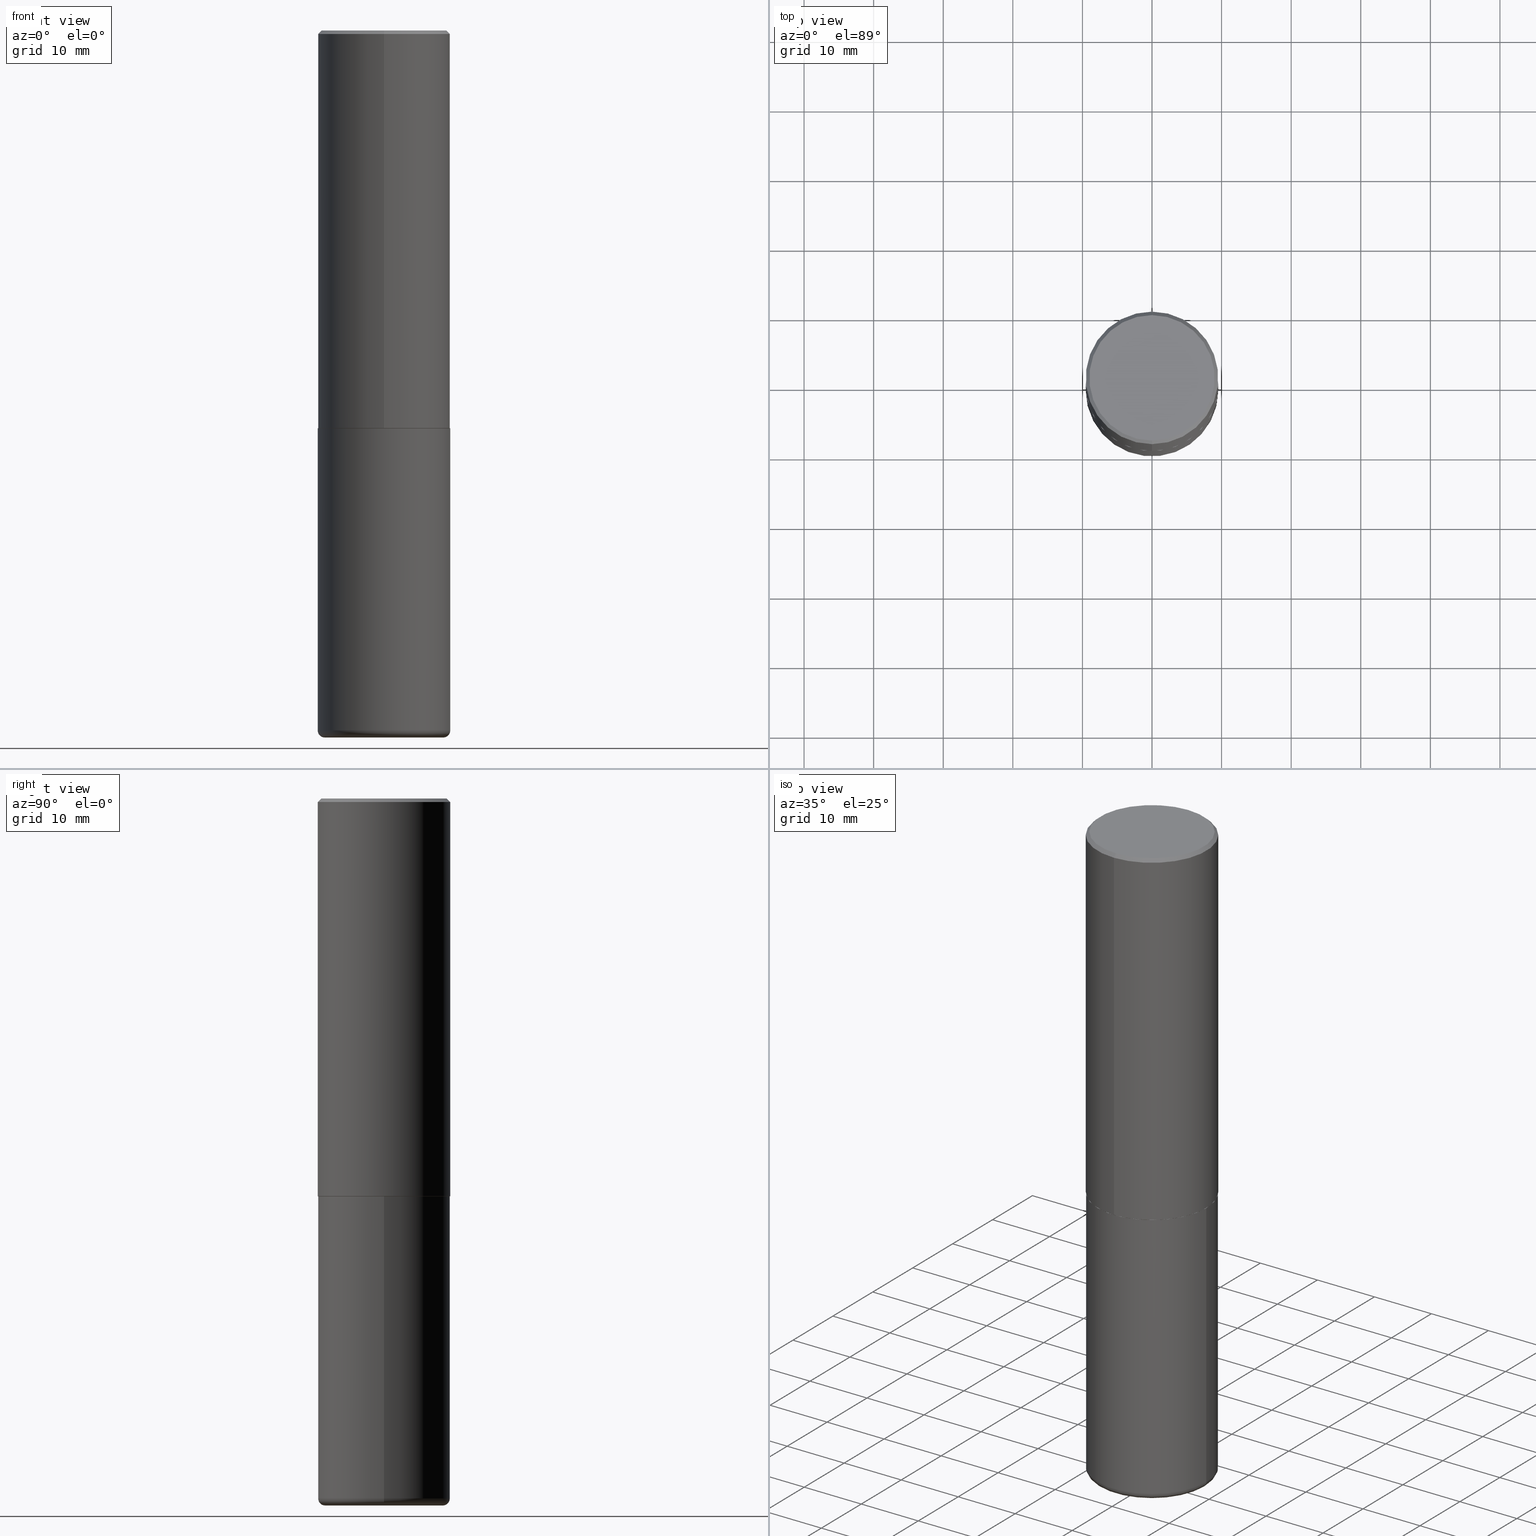
[diagram: canonical four-view strip — front | top / right | iso, engineering-drawing reading convention]
A machine part, canonical four-view strip (front | top / right | iso — engineering-drawing reading convention). The complete STEP part file that produces these views, byte-faithful:
ISO-10303-21;
HEADER;
FILE_DESCRIPTION (( 'STEP AP203' ),
    '1' );
FILE_NAME ('33353.STEP',
    '2024-03-01T13:24:22',
    ( '' ),
    ( '' ),
    'SwSTEP 2.0',
    'SolidWorks 2023',
    '' );
FILE_SCHEMA (( 'CONFIG_CONTROL_DESIGN' ));
ENDSEC;

DATA;
#1 = EDGE_CURVE ( 'NONE', #32, #392, #309, .T. ) ;
#2 = CLOSED_SHELL ( 'NONE', ( #136, #146, #199, #396, #107, #31 ) ) ;
#3 = AXIS2_PLACEMENT_3D ( 'NONE', #246, #213, #281 ) ;
#4 = CARTESIAN_POINT ( 'NONE',  ( 9.684056472493141327E-29, -1.382626610181885731E-14, -3.960000000000000409 ) ) ;
#5 = APPROVAL_STATUS ( 'not_yet_approved' ) ;
#6 = CARTESIAN_POINT ( 'NONE',  ( -2.504081769186608216E-15, -0.3549999999999999822, 1.300162411011219070E-15 ) ) ;
#7 = DIRECTION ( 'NONE',  ( -1.000000000000000000, 6.982962677686265922E-15, -4.876176775795935793E-29 ) ) ;
#8 = AXIS2_PLACEMENT_3D ( 'NONE', #357, #385, #226 ) ;
#9 = ORIENTED_EDGE ( 'NONE', *, *, #373, .T. ) ;
#10 = ORIENTED_EDGE ( 'NONE', *, *, #1, .T. ) ;
#11 = APPLICATION_CONTEXT ( 'configuration controlled 3d designs of mechanical parts and assemblies' ) ;
#12 = PLANE ( 'NONE',  #169 ) ;
#13 = PERSON_AND_ORGANIZATION ( #273, #101 ) ;
#14 = DIRECTION ( 'NONE',  ( 1.000000000000000000, -6.982962677686265922E-15, 0.000000000000000000 ) ) ;
#15 = VECTOR ( 'NONE', #237, 39.37007874015748143 ) ;
#16 = COORDINATED_UNIVERSAL_TIME_OFFSET ( 5, 0, .BEHIND. ) ;
#17 = DIRECTION ( 'NONE',  ( 6.982962677686265922E-15, 1.000000000000000000, -3.492787480900183539E-15 ) ) ;
#18 = UNCERTAINTY_MEASURE_WITH_UNIT (LENGTH_MEASURE( 1.000000000000000082E-05 ), #105, 'distance_accuracy_value', 'NONE');
#19 = PERSON_AND_ORGANIZATION ( #273, #101 ) ;
#20 = DIRECTION ( 'NONE',  ( -6.982962677686265922E-15, -1.000000000000000000, 3.492787480900183539E-15 ) ) ;
#21 = COORDINATED_UNIVERSAL_TIME_OFFSET ( 5, 0, .BEHIND. ) ;
#22 = CARTESIAN_POINT ( 'NONE',  ( 5.500252647138444905E-29, -7.858771832025412372E-15, -2.249999999999999556 ) ) ;
#23 = AXIS2_PLACEMENT_3D ( 'NONE', #103, #267, #81 ) ;
#24 = AXIS2_PLACEMENT_3D ( 'NONE', #27, #52, #313 ) ;
#25 = COORDINATED_UNIVERSAL_TIME_OFFSET ( 5, 0, .BEHIND. ) ;
#26 = CARTESIAN_POINT ( 'NONE',  ( 5.500252647138444905E-29, -7.858771832025412372E-15, -2.249999999999999556 ) ) ;
#27 = CARTESIAN_POINT ( 'NONE',  ( 5.497808090406382563E-29, -7.855279044544511212E-15, -2.248999999999999666 ) ) ;
#28 = FACE_OUTER_BOUND ( 'NONE', #29, .T. ) ;
#29 = EDGE_LOOP ( 'NONE', ( #379, #248, #257, #375 ) ) ;
#30 = AXIS2_PLACEMENT_3D ( 'NONE', #413, #184, #155 ) ;
#31 = ADVANCED_FACE ( 'NONE', ( #132 ), #262, .T. ) ;
#32 = VERTEX_POINT ( 'NONE', #393 ) ;
#33 = VERTEX_POINT ( 'NONE', #258 ) ;
#34 = VERTEX_POINT ( 'NONE', #6 ) ;
#35 = ORIENTED_EDGE ( 'NONE', *, *, #397, .T. ) ;
#36 = DIRECTION ( 'NONE',  ( -2.445468806185136597E-29, 3.491481338843145583E-15, 1.000000000000000000 ) ) ;
#37 = DIRECTION ( 'NONE',  ( 5.024295867788576727E-15, 0.7071067811866224018, 0.7071067811864726327 ) ) ;
#38 = EDGE_LOOP ( 'NONE', ( #384, #58, #316, #378 ) ) ;
#39 = EDGE_CURVE ( 'NONE', #392, #32, #266, .T. ) ;
#40 = PRODUCT ( '33353', '33353', '', ( #368 ) ) ;
#41 = FACE_OUTER_BOUND ( 'NONE', #159, .T. ) ;
#42 = DIRECTION ( 'NONE',  ( 1.000000000000000000, -6.982962677686266711E-15, 4.876176775795935793E-29 ) ) ;
#43 = CARTESIAN_POINT ( 'NONE',  ( 0.000000000000000000, 0.000000000000000000, 0.000000000000000000 ) ) ;
#44 = DIRECTION ( 'NONE',  ( -6.982962677686265922E-15, -1.000000000000000000, 3.492787480900183539E-15 ) ) ;
#45 = TOROIDAL_SURFACE ( 'NONE', #206, 0.3350000000000000200, 0.04000000000000001471 ) ;
#46 = CALENDAR_DATE ( 2024, 1, 3 ) ;
#47 = FACE_OUTER_BOUND ( 'NONE', #192, .T. ) ;
#48 = PERSON_AND_ORGANIZATION_ROLE ( 'classification_officer' ) ;
#49 = CARTESIAN_POINT ( 'NONE',  ( -2.618611004132297163E-15, -0.3750000000000081601, -2.248999999999998334 ) ) ;
#50 = EDGE_CURVE ( 'NONE', #354, #282, #233, .T. ) ;
#51 = CALENDAR_DATE ( 2024, 1, 3 ) ;
#52 = DIRECTION ( 'NONE',  ( -2.444556732061531349E-29, 3.492787480900183539E-15, 1.000000000000000000 ) ) ;
#53 = CIRCLE ( 'NONE', #30, 0.3750000000000000555 ) ;
#54 = DIRECTION ( 'NONE',  ( -2.445468806185136597E-29, 3.491481338843145583E-15, 1.000000000000000000 ) ) ;
#55 = ORIENTED_EDGE ( 'NONE', *, *, #165, .T. ) ;
#56 = COORDINATED_UNIVERSAL_TIME_OFFSET ( 5, 0, .BEHIND. ) ;
#57 = DIRECTION ( 'NONE',  ( -2.444556732061531349E-29, 3.492787480900183539E-15, 1.000000000000000000 ) ) ;
#58 = ORIENTED_EDGE ( 'NONE', *, *, #69, .T. ) ;
#59 = ORIENTED_EDGE ( 'NONE', *, *, #69, .F. ) ;
#60 = CIRCLE ( 'NONE', #131, 0.3350000000000000200 ) ;
#61 = SECURITY_CLASSIFICATION ( '', '', #78 ) ;
#62 = ORIENTED_EDGE ( 'NONE', *, *, #370, .F. ) ;
#63 = ORIENTED_EDGE ( 'NONE', *, *, #397, .F. ) ;
#64 = LINE ( 'NONE', #358, #200 ) ;
#65 = AXIS2_PLACEMENT_3D ( 'NONE', #279, #84, #150 ) ;
#66 = LOCAL_TIME ( 8, 24, 22.00000000000000000, #404 ) ;
#67 = DIRECTION ( 'NONE',  ( -6.982962677686266711E-15, -1.000000000000000000, 3.492787480900183934E-15 ) ) ;
#68 = DIRECTION ( 'NONE',  ( -2.444556732061531349E-29, 3.492787480900183539E-15, 1.000000000000000000 ) ) ;
#69 = EDGE_CURVE ( 'NONE', #33, #418, #64, .T. ) ;
#70 = DIRECTION ( 'NONE',  ( -2.444556732061531349E-29, 3.492787480900183539E-15, 1.000000000000000000 ) ) ;
#71 = DIRECTION ( 'NONE',  ( -4.851104656540953231E-15, -0.7071067811865484609, -0.7071067811865465735 ) ) ;
#72 = CARTESIAN_POINT ( 'NONE',  ( 2.618611004132350411E-15, 0.3749999999999999445, -0.02000000000000139513 ) ) ;
#73 = DIRECTION ( 'NONE',  ( 1.000000000000000000, 0.000000000000000000, 0.000000000000000000 ) ) ;
#74 = DIRECTION ( 'NONE',  ( -6.982962677686266711E-15, -1.000000000000000000, 3.642463991552348591E-15 ) ) ;
#75 = DIRECTION ( 'NONE',  ( -2.444556732061531069E-29, 3.492787480900183539E-15, 1.000000000000000000 ) ) ;
#76 = AXIS2_PLACEMENT_3D ( 'NONE', #4, #227, #295 ) ;
#77 = AXIS2_PLACEMENT_3D ( 'NONE', #43, #142, #73 ) ;
#78 = SECURITY_CLASSIFICATION_LEVEL ( 'unclassified' ) ;
#79 = LINE ( 'NONE', #72, #361 ) ;
#80 = DATE_AND_TIME ( #304, #66 ) ;
#81 = DIRECTION ( 'NONE',  ( 1.000000000000000000, -6.982962677686265922E-15, 4.883557194083113462E-29 ) ) ;
#82 = EDGE_CURVE ( 'NONE', #88, #33, #359, .T. ) ;
#83 = CALENDAR_DATE ( 2024, 1, 3 ) ;
#84 = DIRECTION ( 'NONE',  ( -2.445468806185136597E-29, 3.491481338843145583E-15, 1.000000000000000000 ) ) ;
#85 = CIRCLE ( 'NONE', #414, 0.3739999999999999991 ) ;
#86 = ORIENTED_EDGE ( 'NONE', *, *, #39, .F. ) ;
#87 = DIRECTION ( 'NONE',  ( -1.000000000000000000, 7.105427357601014480E-15, 0.000000000000000000 ) ) ;
#88 = VERTEX_POINT ( 'NONE', #127 ) ;
#89 = ORIENTED_EDGE ( 'NONE', *, *, #386, .T. ) ;
#90 = EDGE_LOOP ( 'NONE', ( #89, #95 ) ) ;
#91 = EDGE_LOOP ( 'NONE', ( #314, #55 ) ) ;
#92 = ADVANCED_FACE ( 'NONE', ( #328 ), #231, .T. ) ;
#93 = EDGE_CURVE ( 'NONE', #88, #288, #85, .T. ) ;
#94 = EDGE_LOOP ( 'NONE', ( #292, #223, #252, #202 ) ) ;
#95 = ORIENTED_EDGE ( 'NONE', *, *, #50, .T. ) ;
#96 = VECTOR ( 'NONE', #71, 39.37007874015748143 ) ;
#97 = DIRECTION ( 'NONE',  ( -2.445468806185136597E-29, 3.491481338843145583E-15, 1.000000000000000000 ) ) ;
#98 = DIRECTION ( 'NONE',  ( -2.444556732061531349E-29, 3.492787480900183539E-15, 1.000000000000000000 ) ) ;
#99 = CARTESIAN_POINT ( 'NONE',  ( 9.684056472493140206E-29, -1.382626610181885573E-14, -3.959999999999999964 ) ) ;
#100 = AXIS2_PLACEMENT_3D ( 'NONE', #198, #36, #355 ) ;
#101 = ORGANIZATION ( 'UNSPECIFIED', 'UNSPECIFIED', '' ) ;
#102 = CARTESIAN_POINT ( 'NONE',  ( -2.618611004132351200E-15, -0.3750000000000001665, 1.309795305337569517E-15 ) ) ;
#103 = CARTESIAN_POINT ( 'NONE',  ( 9.684056472493140206E-29, -1.382626610181885573E-14, -3.959999999999999964 ) ) ;
#104 = APPROVAL ( #5, 'UNSPECIFIED' ) ;
#105 =( CONVERSION_BASED_UNIT ( 'INCH', #275 ) LENGTH_UNIT ( ) NAMED_UNIT ( #167 ) );
#106 = DIRECTION ( 'NONE',  ( -6.982962677686266711E-15, -1.000000000000000000, 3.652203200085913145E-15 ) ) ;
#107 = ADVANCED_FACE ( 'NONE', ( #259 ), #45, .T. ) ;
#108 = PERSON_AND_ORGANIZATION_ROLE ( 'creator' ) ;
#109 = DIRECTION ( 'NONE',  ( -2.444556732061531349E-29, 3.492787480900183539E-15, 1.000000000000000000 ) ) ;
#110 = AXIS2_PLACEMENT_3D ( 'NONE', #325, #68, #166 ) ;
#111 = EDGE_CURVE ( 'NONE', #34, #308, #394, .T. ) ;
#112 = DIRECTION ( 'NONE',  ( -1.000000000000000000, 6.982962677686265922E-15, -4.876176775795935793E-29 ) ) ;
#113 = MANIFOLD_SOLID_BREP ( 'Body-Move/Copy2[2]', #156 ) ;
#114 = APPROVAL_DATE_TIME ( #80, #158 ) ;
#115 = CARTESIAN_POINT ( 'NONE',  ( 0.000000000000000000, 0.000000000000000000, 0.000000000000000000 ) ) ;
#116 = CYLINDRICAL_SURFACE ( 'NONE', #291, 0.3749999999999999445 ) ;
#117 = CIRCLE ( 'NONE', #356, 0.3750000000000000555 ) ;
#118 = ORIENTED_EDGE ( 'NONE', *, *, #161, .F. ) ;
#119 = CARTESIAN_POINT ( 'NONE',  ( -2.572686749164323547E-15, -0.3750000000000001110, -0.01999999999999877570 ) ) ;
#120 = ORIENTED_EDGE ( 'NONE', *, *, #391, .T. ) ;
#121 = EDGE_CURVE ( 'NONE', #418, #308, #322, .T. ) ;
#122 = ORIENTED_EDGE ( 'NONE', *, *, #50, .F. ) ;
#123 = CC_DESIGN_DATE_AND_TIME_ASSIGNMENT ( #214, #341, ( #61 ) ) ;
#124 = VERTEX_POINT ( 'NONE', #294 ) ;
#125 = AXIS2_PLACEMENT_3D ( 'NONE', #405, #75, #44 ) ;
#126 = DIRECTION ( 'NONE',  ( 2.438088387897960049E-29, -3.491481338843145188E-15, -1.000000000000000000 ) ) ;
#127 = CARTESIAN_POINT ( 'NONE',  ( 2.660982545421630808E-15, 0.3739999999999921720, -2.250000000000001332 ) ) ;
#128 = PRODUCT_DEFINITION_SHAPE ( 'NONE', 'NONE',  #243 ) ;
#129 = DIRECTION ( 'NONE',  ( 1.000000000000000000, -6.982962677686265922E-15, 4.883557194083113462E-29 ) ) ;
#130 = APPROVAL_ROLE ( '' ) ;
#131 = AXIS2_PLACEMENT_3D ( 'NONE', #203, #178, #14 ) ;
#132 = FACE_OUTER_BOUND ( 'NONE', #153, .T. ) ;
#133 = DIRECTION ( 'NONE',  ( -6.982962677686266711E-15, -1.000000000000000000, 3.652203200085913145E-15 ) ) ;
#134 = ORIENTED_EDGE ( 'NONE', *, *, #173, .F. ) ;
#135 = LINE ( 'NONE', #102, #296 ) ;
#136 = ADVANCED_FACE ( 'NONE', ( #260 ), #324, .T. ) ;
#137 = PERSON_AND_ORGANIZATION_ROLE ( 'design_supplier' ) ;
#138 = TOROIDAL_SURFACE ( 'NONE', #23, 0.3350000000000000200, 0.04000000000000001471 ) ;
#139 = CONICAL_SURFACE ( 'NONE', #195, 0.3750000000000000555, 0.7853981633974461696 ) ;
#140 = ADVANCED_FACE ( 'NONE', ( #298 ), #12, .F. ) ;
#141 = DIRECTION ( 'NONE',  ( -4.937700262165053702E-15, -0.7071067811866175168, 0.7071067811864775177 ) ) ;
#142 = DIRECTION ( 'NONE',  ( 0.000000000000000000, 0.000000000000000000, 1.000000000000000000 ) ) ;
#143 = CC_DESIGN_PERSON_AND_ORGANIZATION_ASSIGNMENT ( #372, #409, ( #243 ) ) ;
#144 = APPROVAL_STATUS ( 'not_yet_approved' ) ;
#145 = CARTESIAN_POINT ( 'NONE',  ( 5.500252647138444905E-29, -7.858771832025412372E-15, -2.249999999999999556 ) ) ;
#146 = ADVANCED_FACE ( 'NONE', ( #41 ), #138, .T. ) ;
#147 = AXIS2_PLACEMENT_3D ( 'NONE', #210, #336, #20 ) ;
#148 = DIRECTION ( 'NONE',  ( -6.982962677686266711E-15, -1.000000000000000000, 3.652203200085913145E-15 ) ) ;
#149 = PERSON_AND_ORGANIZATION ( #273, #101 ) ;
#150 = DIRECTION ( 'NONE',  ( 1.000000000000000000, -6.982962677686265922E-15, 0.000000000000000000 ) ) ;
#151 = EDGE_LOOP ( 'NONE', ( #289, #255, #162, #118 ) ) ;
#152 = CARTESIAN_POINT ( 'NONE',  ( -0.3750000000000000555, -8.176514298007592183E-15, -2.249999999999999556 ) ) ;
#153 = EDGE_LOOP ( 'NONE', ( #412, #287 ) ) ;
#154 = APPROVAL_DATE_TIME ( #390, #104 ) ;
#155 = DIRECTION ( 'NONE',  ( 1.000000000000000000, -6.982962677686266711E-15, 0.000000000000000000 ) ) ;
#156 = CLOSED_SHELL ( 'NONE', ( #268, #263, #191, #348, #92, #283, #271, #140 ) ) ;
#157 = ORIENTED_EDGE ( 'NONE', *, *, #386, .F. ) ;
#158 = APPROVAL ( #144, 'UNSPECIFIED' ) ;
#159 = EDGE_LOOP ( 'NONE', ( #347, #9, #349, #272 ) ) ;
#160 = EDGE_LOOP ( 'NONE', ( #63, #168, #220, #122 ) ) ;
#161 = EDGE_CURVE ( 'NONE', #280, #418, #79, .T. ) ;
#162 = ORIENTED_EDGE ( 'NONE', *, *, #327, .T. ) ;
#163 = LOCAL_TIME ( 8, 24, 22.00000000000000000, #21 ) ;
#164 = EDGE_LOOP ( 'NONE', ( #59, #120, #344, #190 ) ) ;
#165 = EDGE_CURVE ( 'NONE', #34, #280, #333, .T. ) ;
#166 = DIRECTION ( 'NONE',  ( -6.982962677686265922E-15, -1.000000000000000000, 3.494488891895536035E-15 ) ) ;
#167 = DIMENSIONAL_EXPONENTS ( 1.000000000000000000, 0.000000000000000000, 0.000000000000000000, 0.000000000000000000, 0.000000000000000000, 0.000000000000000000, 0.000000000000000000 ) ;
#168 = ORIENTED_EDGE ( 'NONE', *, *, #39, .T. ) ;
#169 = AXIS2_PLACEMENT_3D ( 'NONE', #180, #270, #17 ) ;
#170 = VECTOR ( 'NONE', #141, 39.37007874015748143 ) ;
#171 = DIRECTION ( 'NONE',  ( -2.444556732061531349E-29, 3.492787480900183539E-15, 1.000000000000000000 ) ) ;
#172 = DIRECTION ( 'NONE',  ( -2.444556732061531349E-29, 3.492787480900183539E-15, 1.000000000000000000 ) ) ;
#173 = EDGE_CURVE ( 'NONE', #32, #282, #307, .T. ) ;
#174 = DATE_AND_TIME ( #46, #163 ) ;
#175 = CARTESIAN_POINT ( 'NONE',  ( 5.502304813916556222E-29, -7.855833012397076871E-15, -2.249999999999999556 ) ) ;
#176 = CIRCLE ( 'NONE', #3, 0.3549999999999999822 ) ;
#177 = LOCAL_TIME ( 8, 24, 22.00000000000000000, #25 ) ;
#178 = DIRECTION ( 'NONE',  ( -2.445468806185136597E-29, 3.491481338843145583E-15, 1.000000000000000000 ) ) ;
#179 = APPROVAL_STATUS ( 'not_yet_approved' ) ;
#180 = CARTESIAN_POINT ( 'NONE',  ( 2.478951750578624209E-15, 0.3549999999999999822, -1.209828128073737866E-15 ) ) ;
#181 = DIRECTION ( 'NONE',  ( -2.444556732061531349E-29, 3.492787480900183539E-15, 1.000000000000000000 ) ) ;
#182 = PERSON_AND_ORGANIZATION ( #273, #101 ) ;
#183 = AXIS2_PLACEMENT_3D ( 'NONE', #241, #172, #74 ) ;
#184 = DIRECTION ( 'NONE',  ( -2.445468806185136597E-29, 3.491481338843145583E-15, 1.000000000000000000 ) ) ;
#185 =( GEOMETRIC_REPRESENTATION_CONTEXT ( 3 ) GLOBAL_UNCERTAINTY_ASSIGNED_CONTEXT ( ( #18 ) ) GLOBAL_UNIT_ASSIGNED_CONTEXT ( ( #105, #310, #366 ) ) REPRESENTATION_CONTEXT ( 'NONE', 'WORKASPACE' ) );
#186 = CC_DESIGN_PERSON_AND_ORGANIZATION_ASSIGNMENT ( #182, #48, ( #61 ) ) ;
#187 = DIRECTION ( 'NONE',  ( 1.000000000000000000, -6.982962677686266711E-15, 4.876176775795935793E-29 ) ) ;
#188 = LINE ( 'NONE', #416, #362 ) ;
#189 = VERTEX_POINT ( 'NONE', #49 ) ;
#190 = ORIENTED_EDGE ( 'NONE', *, *, #121, .F. ) ;
#191 = ADVANCED_FACE ( 'NONE', ( #363 ), #351, .T. ) ;
#192 = EDGE_LOOP ( 'NONE', ( #320, #353, #264, #387 ) ) ;
#193 = DIRECTION ( 'NONE',  ( -2.445468806185136597E-29, 3.491481338843145583E-15, 1.000000000000000000 ) ) ;
#194 = CIRCLE ( 'NONE', #65, 0.3350000000000000200 ) ;
#195 = AXIS2_PLACEMENT_3D ( 'NONE', #311, #284, #411 ) ;
#196 = CARTESIAN_POINT ( 'NONE',  ( -2.572686749164323547E-15, -0.3750000000000001110, -0.01999999999999877570 ) ) ;
#197 = ORIENTED_EDGE ( 'NONE', *, *, #299, .T. ) ;
#198 = CARTESIAN_POINT ( 'NONE',  ( 5.502304813916556222E-29, -7.855833012397076871E-15, -2.249999999999999556 ) ) ;
#199 = ADVANCED_FACE ( 'NONE', ( #402 ), #371, .F. ) ;
#200 = VECTOR ( 'NONE', #98, 39.37007874015748143 ) ;
#201 = APPROVAL_PERSON_ORGANIZATION ( #302, #401, #236 ) ;
#202 = ORIENTED_EDGE ( 'NONE', *, *, #229, .F. ) ;
#203 = CARTESIAN_POINT ( 'NONE',  ( 9.781875224740546387E-29, -1.396592535537258233E-14, -4.000000000000000000 ) ) ;
#204 = CARTESIAN_POINT ( 'NONE',  ( 2.618611004132350411E-15, 0.3749999999999999445, -0.02000000000000139513 ) ) ;
#205 = DIRECTION ( 'NONE',  ( -2.444556732061531349E-29, 3.492787480900183539E-15, 1.000000000000000000 ) ) ;
#206 = AXIS2_PLACEMENT_3D ( 'NONE', #99, #193, #129 ) ;
#207 = AXIS2_PLACEMENT_3D ( 'NONE', #26, #57, #343 ) ;
#208 = CARTESIAN_POINT ( 'NONE',  ( 2.548781377355487113E-15, 0.3549999999999999822, -1.179716700427910864E-15 ) ) ;
#209 = DIRECTION ( 'NONE',  ( -2.445468806185136877E-29, 3.491481338843145188E-15, 1.000000000000000000 ) ) ;
#210 = CARTESIAN_POINT ( 'NONE',  ( -1.472181863271807767E-45, 2.103456350267532841E-31, 6.022285529165422635E-17 ) ) ;
#211 = PERSON_AND_ORGANIZATION ( #273, #101 ) ;
#212 = EDGE_CURVE ( 'NONE', #417, #124, #60, .T. ) ;
#213 = DIRECTION ( 'NONE',  ( -2.444556732061531349E-29, 3.492787480900183539E-15, 1.000000000000000000 ) ) ;
#214 = DATE_AND_TIME ( #83, #177 ) ;
#215 = AXIS2_PLACEMENT_3D ( 'NONE', #277, #408, #216 ) ;
#216 = DIRECTION ( 'NONE',  ( 1.000000000000000000, -6.982962677686275388E-15, 0.000000000000000000 ) ) ;
#217 = CC_DESIGN_SECURITY_CLASSIFICATION ( #61, ( #383 ) ) ;
#218 = EDGE_CURVE ( 'NONE', #189, #33, #340, .T. ) ;
#219 = CARTESIAN_POINT ( 'NONE',  ( -0.3750000000000000555, -1.116173084271848161E-14, -3.960000000000000409 ) ) ;
#220 = ORIENTED_EDGE ( 'NONE', *, *, #173, .T. ) ;
#221 = EDGE_LOOP ( 'NONE', ( #10, #35, #157, #134 ) ) ;
#222 = VECTOR ( 'NONE', #37, 39.37007874015748143 ) ;
#223 = ORIENTED_EDGE ( 'NONE', *, *, #82, .T. ) ;
#224 = CIRCLE ( 'NONE', #234, 0.04000000000000004940 ) ;
#225 = ORIENTED_EDGE ( 'NONE', *, *, #373, .F. ) ;
#226 = DIRECTION ( 'NONE',  ( 1.000000000000000000, -6.982962677686263555E-15, 0.000000000000000000 ) ) ;
#227 = DIRECTION ( 'NONE',  ( -2.445468806185136597E-29, 3.491481338843145583E-15, 1.000000000000000000 ) ) ;
#228 = AXIS2_PLACEMENT_3D ( 'NONE', #293, #97, #42 ) ;
#229 = EDGE_CURVE ( 'NONE', #288, #189, #303, .T. ) ;
#230 = CARTESIAN_POINT ( 'NONE',  ( 2.657429831742829120E-15, 0.3739999999999921720, -2.250000000000001332 ) ) ;
#231 = CYLINDRICAL_SURFACE ( 'NONE', #249, 0.3750000000000001665 ) ;
#232 = EDGE_LOOP ( 'NONE', ( #62, #321 ) ) ;
#233 = CIRCLE ( 'NONE', #100, 0.3750000000000000555 ) ;
#234 = AXIS2_PLACEMENT_3D ( 'NONE', #339, #377, #87 ) ;
#235 = CYLINDRICAL_SURFACE ( 'NONE', #382, 0.3750000000000001665 ) ;
#236 = APPROVAL_ROLE ( '' ) ;
#237 = DIRECTION ( 'NONE',  ( -2.445468806185136877E-29, 3.491481338843145188E-15, 1.000000000000000000 ) ) ;
#238 = DIRECTION ( 'NONE',  ( 6.982962677686265922E-15, 1.000000000000000000, -3.494488891895536035E-15 ) ) ;
#239 = PRODUCT_RELATED_PRODUCT_CATEGORY ( 'detail', '', ( #40 ) ) ;
#240 = CONICAL_SURFACE ( 'NONE', #290, 0.3739999999999999991, 0.7853981633975507526 ) ;
#241 = CARTESIAN_POINT ( 'NONE',  ( 5.497808090406382563E-29, -7.855279044544511212E-15, -2.248999999999999666 ) ) ;
#242 = APPLICATION_PROTOCOL_DEFINITION ( 'international standard', 'config_control_design', 1994, #11 ) ;
#243 = PRODUCT_DEFINITION ( 'UNKNOWN', '', #383, #247 ) ;
#244 = DIRECTION ( 'NONE',  ( 2.444556732061531349E-29, -3.492787480900183539E-15, -1.000000000000000000 ) ) ;
#245 = PERSON_AND_ORGANIZATION_ROLE ( 'design_owner' ) ;
#246 = CARTESIAN_POINT ( 'NONE',  ( -1.472181863271807767E-45, 2.103456350267532841E-31, 6.022285529165422635E-17 ) ) ;
#247 = DESIGN_CONTEXT ( 'detailed design', #338, 'design' ) ;
#248 = ORIENTED_EDGE ( 'NONE', *, *, #337, .F. ) ;
#249 = AXIS2_PLACEMENT_3D ( 'NONE', #360, #70, #67 ) ;
#250 = CARTESIAN_POINT ( 'NONE',  ( 4.889113464123083543E-31, -6.985574961800397105E-17, -0.02000000000000008715 ) ) ;
#251 = CC_DESIGN_PERSON_AND_ORGANIZATION_ASSIGNMENT ( #211, #137, ( #383 ) ) ;
#252 = ORIENTED_EDGE ( 'NONE', *, *, #218, .F. ) ;
#253 = DIRECTION ( 'NONE',  ( -2.444556732061531349E-29, 3.492787480900183539E-15, 1.000000000000000000 ) ) ;
#254 = EDGE_CURVE ( 'NONE', #189, #308, #135, .T. ) ;
#255 = ORIENTED_EDGE ( 'NONE', *, *, #111, .T. ) ;
#256 = ADVANCED_BREP_SHAPE_REPRESENTATION ( '33353', ( #395, #113, #77 ), #185 ) ;
#257 = ORIENTED_EDGE ( 'NONE', *, *, #161, .T. ) ;
#258 = CARTESIAN_POINT ( 'NONE',  ( 2.664535259100404490E-15, 0.3749999999999924505, -2.249000000000000998 ) ) ;
#259 = FACE_OUTER_BOUND ( 'NONE', #381, .T. ) ;
#260 = FACE_OUTER_BOUND ( 'NONE', #221, .T. ) ;
#261 = CC_DESIGN_APPROVAL ( #158, ( #383 ) ) ;
#262 = PLANE ( 'NONE',  #388 ) ;
#263 = ADVANCED_FACE ( 'NONE', ( #367 ), #235, .T. ) ;
#264 = ORIENTED_EDGE ( 'NONE', *, *, #229, .T. ) ;
#265 = DIRECTION ( 'NONE',  ( -2.444556732061531349E-29, 3.492787480900183539E-15, 1.000000000000000000 ) ) ;
#266 = CIRCLE ( 'NONE', #8, 0.3749999999999999445 ) ;
#267 = DIRECTION ( 'NONE',  ( -2.445468806185136597E-29, 3.491481338843145583E-15, 1.000000000000000000 ) ) ;
#268 = ADVANCED_FACE ( 'NONE', ( #331 ), #350, .T. ) ;
#269 = DATE_AND_TIME ( #51, #352 ) ;
#270 = DIRECTION ( 'NONE',  ( 2.444556732061531069E-29, -3.492787480900183539E-15, -1.000000000000000000 ) ) ;
#271 = ADVANCED_FACE ( 'NONE', ( #398 ), #332, .F. ) ;
#272 = ORIENTED_EDGE ( 'NONE', *, *, #286, .F. ) ;
#273 = PERSON ( 'UNSPECIFIED', 'UNSPECIFIED', 'UNSPECIFIED', ('UNSPECIFIED'), ('UNSPECIFIED'), ('UNSPECIFIED') ) ;
#274 = CARTESIAN_POINT ( 'NONE',  ( 0.000000000000000000, 0.000000000000000000, 0.000000000000000000 ) ) ;
#275 = LENGTH_MEASURE_WITH_UNIT ( LENGTH_MEASURE( 0.02539999999999999897 ), #278 );
#276 = CIRCLE ( 'NONE', #24, 0.3750000000000002776 ) ;
#277 = CARTESIAN_POINT ( 'NONE',  ( 0.3350000000000000200, -1.616555859884375414E-14, -3.959999999999999964 ) ) ;
#278 =( LENGTH_UNIT ( ) NAMED_UNIT ( * ) SI_UNIT ( $, .METRE. ) );
#279 = CARTESIAN_POINT ( 'NONE',  ( 9.781875224740546387E-29, -1.396592535537258233E-14, -4.000000000000000000 ) ) ;
#280 = VERTEX_POINT ( 'NONE', #208 ) ;
#281 = DIRECTION ( 'NONE',  ( -6.982962677686265922E-15, -1.000000000000000000, 3.492787480900183539E-15 ) ) ;
#282 = VERTEX_POINT ( 'NONE', #335 ) ;
#283 = ADVANCED_FACE ( 'NONE', ( #47 ), #240, .T. ) ;
#284 = DIRECTION ( 'NONE',  ( 2.444556732061531349E-29, -3.492787480900183539E-15, -1.000000000000000000 ) ) ;
#285 = LOCAL_TIME ( 8, 24, 22.00000000000000000, #56 ) ;
#286 = EDGE_CURVE ( 'NONE', #417, #32, #399, .T. ) ;
#287 = ORIENTED_EDGE ( 'NONE', *, *, #299, .F. ) ;
#288 = VERTEX_POINT ( 'NONE', #315 ) ;
#289 = ORIENTED_EDGE ( 'NONE', *, *, #165, .F. ) ;
#290 = AXIS2_PLACEMENT_3D ( 'NONE', #145, #109, #148 ) ;
#291 = AXIS2_PLACEMENT_3D ( 'NONE', #115, #54, #187 ) ;
#292 = ORIENTED_EDGE ( 'NONE', *, *, #370, .T. ) ;
#293 = CARTESIAN_POINT ( 'NONE',  ( 0.000000000000000000, 0.000000000000000000, 0.000000000000000000 ) ) ;
#294 = CARTESIAN_POINT ( 'NONE',  ( -0.3350000000000000200, -1.137366901664736350E-14, -4.000000000000000000 ) ) ;
#295 = DIRECTION ( 'NONE',  ( 1.000000000000000000, -6.982962677686263555E-15, 0.000000000000000000 ) ) ;
#296 = VECTOR ( 'NONE', #181, 39.37007874015748143 ) ;
#297 = CARTESIAN_POINT ( 'NONE',  ( 9.781875224740546387E-29, -1.396592535537258233E-14, -4.000000000000000000 ) ) ;
#298 = FACE_OUTER_BOUND ( 'NONE', #91, .T. ) ;
#299 = EDGE_CURVE ( 'NONE', #124, #417, #194, .T. ) ;
#300 = CARTESIAN_POINT ( 'NONE',  ( 0.3350000000000000200, -1.630521785239748073E-14, -4.000000000000000000 ) ) ;
#301 = CARTESIAN_POINT ( 'NONE',  ( 4.889113464123083543E-31, -6.985574961800397105E-17, -0.02000000000000008715 ) ) ;
#302 = PERSON_AND_ORGANIZATION ( #273, #101 ) ;
#303 = LINE ( 'NONE', #403, #170 ) ;
#304 = CALENDAR_DATE ( 2024, 1, 3 ) ;
#305 = DIRECTION ( 'NONE',  ( 4.937700262164536998E-15, 0.7071067811865435759, -0.7071067811865514585 ) ) ;
#306 = APPROVAL_DATE_TIME ( #269, #401 ) ;
#307 = LINE ( 'NONE', #369, #15 ) ;
#308 = VERTEX_POINT ( 'NONE', #119 ) ;
#309 = CIRCLE ( 'NONE', #76, 0.3749999999999999445 ) ;
#310 =( NAMED_UNIT ( * ) PLANE_ANGLE_UNIT ( ) SI_UNIT ( $, .RADIAN. ) );
#311 = CARTESIAN_POINT ( 'NONE',  ( 4.889113464123083543E-31, -6.985574961800397105E-17, -0.02000000000000008715 ) ) ;
#312 = SHAPE_DEFINITION_REPRESENTATION ( #128, #256 ) ;
#313 = DIRECTION ( 'NONE',  ( -6.982962677686266711E-15, -1.000000000000000000, 3.642463991552348591E-15 ) ) ;
#314 = ORIENTED_EDGE ( 'NONE', *, *, #337, .T. ) ;
#315 = CARTESIAN_POINT ( 'NONE',  ( -2.611628041454608782E-15, -0.3740000000000078817, -2.249999999999998224 ) ) ;
#316 = ORIENTED_EDGE ( 'NONE', *, *, #327, .F. ) ;
#317 = CALENDAR_DATE ( 2024, 1, 3 ) ;
#318 = AXIS2_PLACEMENT_3D ( 'NONE', #175, #329, #112 ) ;
#319 = APPROVAL_PERSON_ORGANIZATION ( #345, #104, #130 ) ;
#320 = ORIENTED_EDGE ( 'NONE', *, *, #82, .F. ) ;
#321 = ORIENTED_EDGE ( 'NONE', *, *, #93, .F. ) ;
#322 = CIRCLE ( 'NONE', #110, 0.3750000000000000555 ) ;
#323 = CIRCLE ( 'NONE', #207, 0.3739999999999999991 ) ;
#324 = CYLINDRICAL_SURFACE ( 'NONE', #228, 0.3749999999999999445 ) ;
#325 = CARTESIAN_POINT ( 'NONE',  ( 4.889113464123083543E-31, -6.985574961800397105E-17, -0.02000000000000008715 ) ) ;
#326 = ORIENTED_EDGE ( 'NONE', *, *, #286, .T. ) ;
#327 = EDGE_CURVE ( 'NONE', #308, #418, #117, .T. ) ;
#328 = FACE_OUTER_BOUND ( 'NONE', #164, .T. ) ;
#329 = DIRECTION ( 'NONE',  ( 2.438088387897960049E-29, -3.491481338843145188E-15, -1.000000000000000000 ) ) ;
#330 = CC_DESIGN_PERSON_AND_ORGANIZATION_ASSIGNMENT ( #19, #108, ( #383 ) ) ;
#331 = FACE_OUTER_BOUND ( 'NONE', #94, .T. ) ;
#332 = PLANE ( 'NONE',  #125 ) ;
#333 = CIRCLE ( 'NONE', #147, 0.3549999999999999822 ) ;
#334 = APPLICATION_PROTOCOL_DEFINITION ( 'international standard', 'config_control_design', 1994, #338 ) ;
#335 = CARTESIAN_POINT ( 'NONE',  ( 0.3750000000000000555, -1.047444401652942689E-14, -2.249999999999999556 ) ) ;
#336 = DIRECTION ( 'NONE',  ( -2.444556732061531349E-29, 3.492787480900183539E-15, 1.000000000000000000 ) ) ;
#337 = EDGE_CURVE ( 'NONE', #280, #34, #176, .T. ) ;
#338 = APPLICATION_CONTEXT ( 'configuration controlled 3d designs of mechanical parts and assemblies' ) ;
#339 = CARTESIAN_POINT ( 'NONE',  ( -0.3350000000000000200, -1.144594793702251879E-14, -3.959999999999999964 ) ) ;
#340 = CIRCLE ( 'NONE', #183, 0.3750000000000002776 ) ;
#341 = DATE_TIME_ROLE ( 'classification_date' ) ;
#342 = CC_DESIGN_APPROVAL ( #401, ( #243 ) ) ;
#343 = DIRECTION ( 'NONE',  ( -6.982962677686266711E-15, -1.000000000000000000, 3.652203200085913145E-15 ) ) ;
#344 = ORIENTED_EDGE ( 'NONE', *, *, #254, .T. ) ;
#345 = PERSON_AND_ORGANIZATION ( #273, #101 ) ;
#346 = DIRECTION ( 'NONE',  ( -6.982962677686265922E-15, -1.000000000000000000, 3.494488891895536035E-15 ) ) ;
#347 = ORIENTED_EDGE ( 'NONE', *, *, #212, .T. ) ;
#348 = ADVANCED_FACE ( 'NONE', ( #28 ), #139, .T. ) ;
#349 = ORIENTED_EDGE ( 'NONE', *, *, #1, .F. ) ;
#350 = CONICAL_SURFACE ( 'NONE', #406, 0.3739999999999999991, 0.7853981633975507526 ) ;
#351 = CONICAL_SURFACE ( 'NONE', #376, 0.3750000000000000555, 0.7853981633974461696 ) ;
#352 = LOCAL_TIME ( 8, 24, 22.00000000000000000, #16 ) ;
#353 = ORIENTED_EDGE ( 'NONE', *, *, #93, .T. ) ;
#354 = VERTEX_POINT ( 'NONE', #152 ) ;
#355 = DIRECTION ( 'NONE',  ( 1.000000000000000000, -6.982962677686266711E-15, 0.000000000000000000 ) ) ;
#356 = AXIS2_PLACEMENT_3D ( 'NONE', #250, #253, #346 ) ;
#357 = CARTESIAN_POINT ( 'NONE',  ( 9.684056472493141327E-29, -1.382626610181885731E-14, -3.960000000000000409 ) ) ;
#358 = CARTESIAN_POINT ( 'NONE',  ( 2.664535259100376486E-15, 0.3750000000000001665, -1.309795305337569517E-15 ) ) ;
#359 = LINE ( 'NONE', #230, #222 ) ;
#360 = CARTESIAN_POINT ( 'NONE',  ( 0.000000000000000000, 0.000000000000000000, 0.000000000000000000 ) ) ;
#361 = VECTOR ( 'NONE', #305, 39.37007874015748143 ) ;
#362 = VECTOR ( 'NONE', #209, 39.37007874015748143 ) ;
#363 = FACE_OUTER_BOUND ( 'NONE', #151, .T. ) ;
#364 = APPROVAL_ROLE ( '' ) ;
#365 = DIRECTION ( 'NONE',  ( -6.982962677686266711E-15, -1.000000000000000000, 3.492787480900183934E-15 ) ) ;
#366 =( NAMED_UNIT ( * ) SI_UNIT ( $, .STERADIAN. ) SOLID_ANGLE_UNIT ( ) );
#367 = FACE_OUTER_BOUND ( 'NONE', #38, .T. ) ;
#368 = MECHANICAL_CONTEXT ( 'NONE', #11, 'mechanical' ) ;
#369 = CARTESIAN_POINT ( 'NONE',  ( 0.3749999999999999445, -2.618611004132349622E-15, 1.828566290923475642E-29 ) ) ;
#370 = EDGE_CURVE ( 'NONE', #288, #88, #323, .T. ) ;
#371 = PLANE ( 'NONE',  #318 ) ;
#372 = PERSON_AND_ORGANIZATION ( #273, #101 ) ;
#373 = EDGE_CURVE ( 'NONE', #124, #392, #224, .T. ) ;
#374 = FACE_OUTER_BOUND ( 'NONE', #160, .T. ) ;
#375 = ORIENTED_EDGE ( 'NONE', *, *, #121, .T. ) ;
#376 = AXIS2_PLACEMENT_3D ( 'NONE', #301, #244, #238 ) ;
#377 = DIRECTION ( 'NONE',  ( 7.105427357601001859E-15, 1.000000000000000000, -3.491481338843145583E-15 ) ) ;
#378 = ORIENTED_EDGE ( 'NONE', *, *, #254, .F. ) ;
#379 = ORIENTED_EDGE ( 'NONE', *, *, #111, .F. ) ;
#380 = CC_DESIGN_PERSON_AND_ORGANIZATION_ASSIGNMENT ( #149, #245, ( #40 ) ) ;
#381 = EDGE_LOOP ( 'NONE', ( #225, #197, #326, #86 ) ) ;
#382 = AXIS2_PLACEMENT_3D ( 'NONE', #274, #205, #365 ) ;
#383 = PRODUCT_DEFINITION_FORMATION_WITH_SPECIFIED_SOURCE ( 'ANY', '', #40, .NOT_KNOWN. ) ;
#384 = ORIENTED_EDGE ( 'NONE', *, *, #218, .T. ) ;
#385 = DIRECTION ( 'NONE',  ( -2.445468806185136597E-29, 3.491481338843145583E-15, 1.000000000000000000 ) ) ;
#386 = EDGE_CURVE ( 'NONE', #282, #354, #53, .T. ) ;
#387 = ORIENTED_EDGE ( 'NONE', *, *, #391, .F. ) ;
#388 = AXIS2_PLACEMENT_3D ( 'NONE', #297, #126, #7 ) ;
#389 = CARTESIAN_POINT ( 'NONE',  ( 5.500252647138444905E-29, -7.858771832025412372E-15, -2.249999999999999556 ) ) ;
#390 = DATE_AND_TIME ( #317, #285 ) ;
#391 = EDGE_CURVE ( 'NONE', #33, #189, #276, .T. ) ;
#392 = VERTEX_POINT ( 'NONE', #219 ) ;
#393 = CARTESIAN_POINT ( 'NONE',  ( 0.3750000000000000555, -1.644487710595120733E-14, -3.960000000000000409 ) ) ;
#394 = LINE ( 'NONE', #196, #96 ) ;
#395 = MANIFOLD_SOLID_BREP ( 'Body-Move/Copy2[1]', #2 ) ;
#396 = ADVANCED_FACE ( 'NONE', ( #374 ), #116, .T. ) ;
#397 = EDGE_CURVE ( 'NONE', #392, #354, #188, .T. ) ;
#398 = FACE_OUTER_BOUND ( 'NONE', #232, .T. ) ;
#399 = CIRCLE ( 'NONE', #215, 0.04000000000000004940 ) ;
#400 = CC_DESIGN_APPROVAL ( #104, ( #61 ) ) ;
#401 = APPROVAL ( #179, 'UNSPECIFIED' ) ;
#402 = FACE_OUTER_BOUND ( 'NONE', #90, .T. ) ;
#403 = CARTESIAN_POINT ( 'NONE',  ( -2.611628041454608782E-15, -0.3740000000000078817, -2.249999999999998224 ) ) ;
#404 = COORDINATED_UNIVERSAL_TIME_OFFSET ( 5, 0, .BEHIND. ) ;
#405 = CARTESIAN_POINT ( 'NONE',  ( 5.500252647138444905E-29, -7.858771832025412372E-15, -2.249999999999999556 ) ) ;
#406 = AXIS2_PLACEMENT_3D ( 'NONE', #22, #265, #106 ) ;
#407 = DATE_TIME_ROLE ( 'creation_date' ) ;
#408 = DIRECTION ( 'NONE',  ( -6.982962677686266711E-15, -1.000000000000000000, 3.491481338843145583E-15 ) ) ;
#409 = PERSON_AND_ORGANIZATION_ROLE ( 'creator' ) ;
#410 = CC_DESIGN_DATE_AND_TIME_ASSIGNMENT ( #174, #407, ( #243 ) ) ;
#411 = DIRECTION ( 'NONE',  ( 6.982962677686265922E-15, 1.000000000000000000, -3.494488891895536035E-15 ) ) ;
#412 = ORIENTED_EDGE ( 'NONE', *, *, #212, .F. ) ;
#413 = CARTESIAN_POINT ( 'NONE',  ( 5.502304813916556222E-29, -7.855833012397076871E-15, -2.249999999999999556 ) ) ;
#414 = AXIS2_PLACEMENT_3D ( 'NONE', #389, #171, #133 ) ;
#415 = APPROVAL_PERSON_ORGANIZATION ( #13, #158, #364 ) ;
#416 = CARTESIAN_POINT ( 'NONE',  ( -0.3749999999999999445, 2.664535259100375303E-15, -1.844600658845589318E-29 ) ) ;
#417 = VERTEX_POINT ( 'NONE', #300 ) ;
#418 = VERTEX_POINT ( 'NONE', #204 ) ;
ENDSEC;
END-ISO-10303-21;
